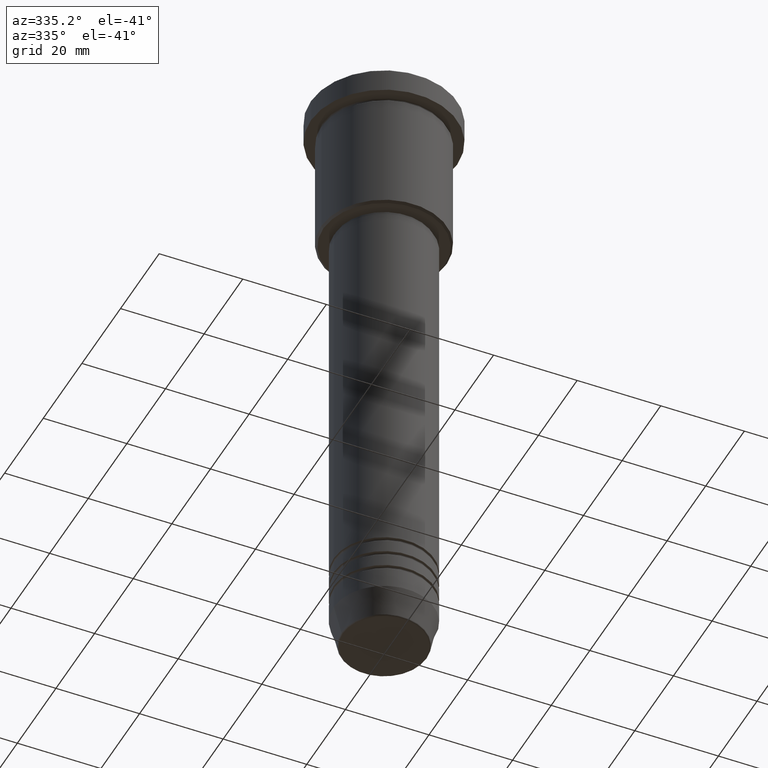
[diagram: clean part render]
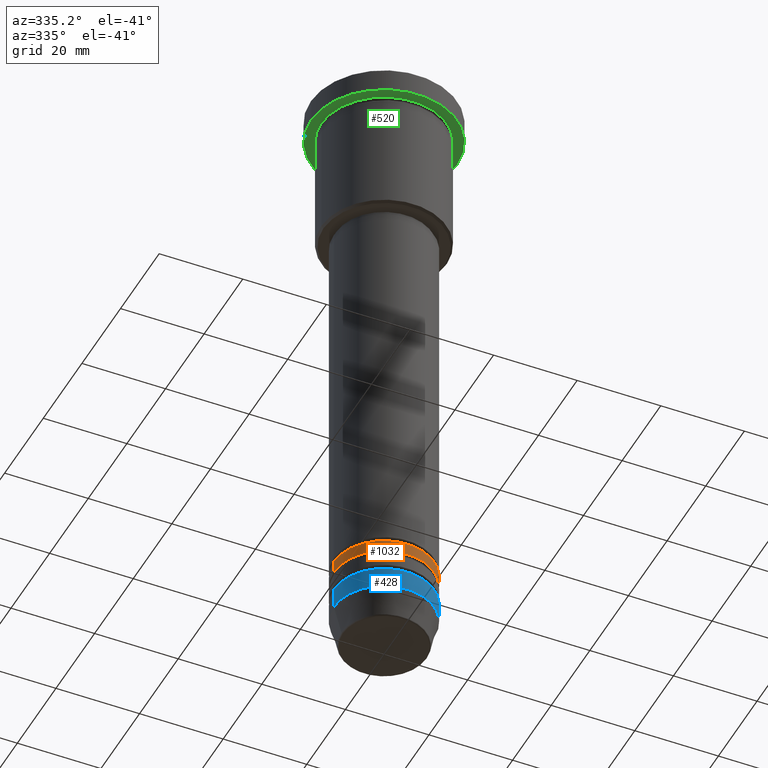
[diagram: same view with three faces highlighted in distinct colors, each labeled with its STEP entity id]
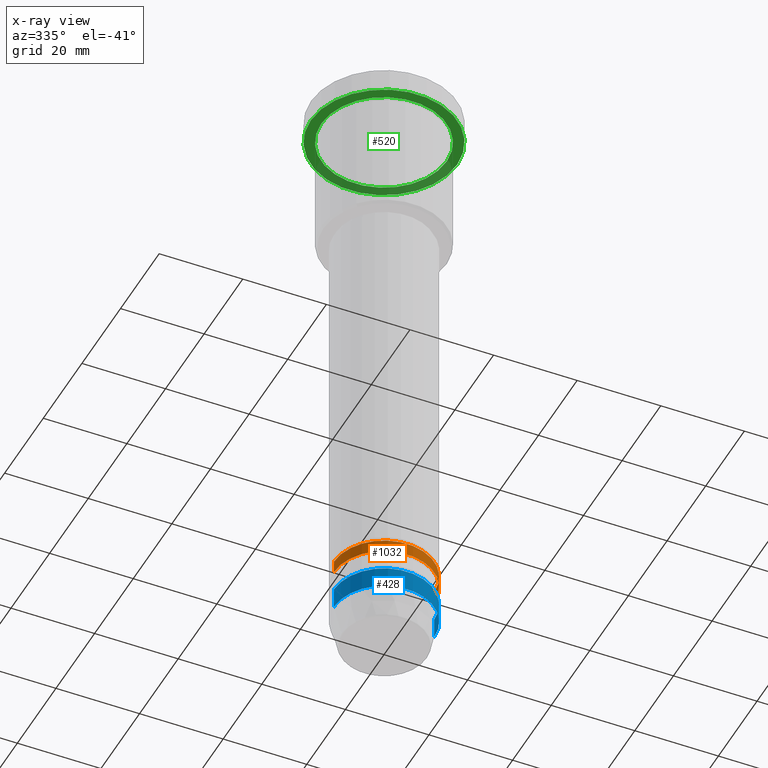
[diagram: x-ray of the same camera — body ghosted, the three highlighted faces saturated]
A machine part, auxiliary view with three faces highlighted in distinct colors.
The next image is the same camera in x-ray (body ghosted, the three faces saturated) — at least one of them is partly hidden behind the body in this view.
Their STEP definitions:

[orange] entity #1032 — the highlighted cylindrical surface (partial cylindrical patch) has radius 12 mm, axis along (-0, -0, 1).
#4 = AXIS2_PLACEMENT_3D ( 'NONE', #356, #722, #1078 ) ;
#32 = VERTEX_POINT ( 'NONE', #124 ) ;
#68 = VERTEX_POINT ( 'NONE', #255 ) ;
#85 = CIRCLE ( 'NONE', #4, 12.00000000000000000 ) ;
#124 = CARTESIAN_POINT ( 'NONE',  ( 12.00000000000000355, 0.000000000000000000, -133.9999999999999147 ) ) ;
#129 = EDGE_LOOP ( 'NONE', ( #529, #988, #687, #166 ) ) ;
#152 = CARTESIAN_POINT ( 'NONE',  ( 12.00000000000000000, 0.000000000000000000, -130.9999999999998863 ) ) ;
#166 = ORIENTED_EDGE ( 'NONE', *, *, #1021, .F. ) ;
#167 = LINE ( 'NONE', #874, #960 ) ;
#173 = DIRECTION ( 'NONE',  ( -0.000000000000000000, -0.000000000000000000, 1.000000000000000000 ) ) ;
#190 = CYLINDRICAL_SURFACE ( 'NONE', #445, 12.00000000000000178 ) ;
#241 = VECTOR ( 'NONE', #173, 1000.000000000000000 ) ;
#255 = CARTESIAN_POINT ( 'NONE',  ( -12.00000000000000000, 1.469576158976824144E-15, -130.9999999999998863 ) ) ;
#283 = CIRCLE ( 'NONE', #628, 12.00000000000000355 ) ;
#342 = LINE ( 'NONE', #1171, #241 ) ;
#343 = EDGE_CURVE ( 'NONE', #925, #32, #283, .T. ) ;
#356 = CARTESIAN_POINT ( 'NONE',  ( 0.000000000000000000, 0.000000000000000000, -130.9999999999998863 ) ) ;
#403 = VERTEX_POINT ( 'NONE', #152 ) ;
#445 = AXIS2_PLACEMENT_3D ( 'NONE', #820, #659, #751 ) ;
#452 = EDGE_CURVE ( 'NONE', #32, #403, #167, .T. ) ;
#457 = FACE_OUTER_BOUND ( 'NONE', #129, .T. ) ;
#474 = EDGE_CURVE ( 'NONE', #925, #68, #342, .T. ) ;
#529 = ORIENTED_EDGE ( 'NONE', *, *, #474, .F. ) ;
#593 = DIRECTION ( 'NONE',  ( -0.000000000000000000, -0.000000000000000000, 1.000000000000000000 ) ) ;
#628 = AXIS2_PLACEMENT_3D ( 'NONE', #943, #593, #1125 ) ;
#659 = DIRECTION ( 'NONE',  ( -0.000000000000000000, -0.000000000000000000, 1.000000000000000000 ) ) ;
#687 = ORIENTED_EDGE ( 'NONE', *, *, #452, .T. ) ;
#702 = CARTESIAN_POINT ( 'NONE',  ( -12.00000000000000533, 1.469576158976824539E-15, -133.9999999999999147 ) ) ;
#722 = DIRECTION ( 'NONE',  ( -0.000000000000000000, -0.000000000000000000, 1.000000000000000000 ) ) ;
#751 = DIRECTION ( 'NONE',  ( 1.000000000000000000, 0.000000000000000000, 0.000000000000000000 ) ) ;
#820 = CARTESIAN_POINT ( 'NONE',  ( 0.000000000000000000, 0.000000000000000000, 0.000000000000000000 ) ) ;
#874 = CARTESIAN_POINT ( 'NONE',  ( 12.00000000000000178, 0.000000000000000000, 0.000000000000000000 ) ) ;
#887 = DIRECTION ( 'NONE',  ( -0.000000000000000000, -0.000000000000000000, 1.000000000000000000 ) ) ;
#925 = VERTEX_POINT ( 'NONE', #702 ) ;
#943 = CARTESIAN_POINT ( 'NONE',  ( 0.000000000000000000, 0.000000000000000000, -133.9999999999999147 ) ) ;
#960 = VECTOR ( 'NONE', #887, 1000.000000000000000 ) ;
#988 = ORIENTED_EDGE ( 'NONE', *, *, #343, .T. ) ;
#1021 = EDGE_CURVE ( 'NONE', #68, #403, #85, .T. ) ;
#1032 = ADVANCED_FACE ( 'NONE', ( #457 ), #190, .T. ) ;
#1078 = DIRECTION ( 'NONE',  ( 1.000000000000000000, 0.000000000000000000, 0.000000000000000000 ) ) ;
#1125 = DIRECTION ( 'NONE',  ( 1.000000000000000000, 0.000000000000000000, 0.000000000000000000 ) ) ;
#1171 = CARTESIAN_POINT ( 'NONE',  ( -12.00000000000000178, 1.469576158976824144E-15, 0.000000000000000000 ) ) ;

[blue] entity #428 — the highlighted cylindrical surface (partial cylindrical patch) has radius 12 mm, axis along (-0, -0, 1).
#20 = VERTEX_POINT ( 'NONE', #109 ) ;
#30 = CARTESIAN_POINT ( 'NONE',  ( 12.00000000000000000, 0.000000000000000000, 0.000000000000000000 ) ) ;
#36 = LINE ( 'NONE', #30, #449 ) ;
#70 = CARTESIAN_POINT ( 'NONE',  ( -12.00000000000000000, 1.469576158976823947E-15, -139.0000000000000000 ) ) ;
#79 = VERTEX_POINT ( 'NONE', #895 ) ;
#109 = CARTESIAN_POINT ( 'NONE',  ( -12.00000000000000000, 1.469576158976823947E-15, -144.0000000000000284 ) ) ;
#119 = EDGE_CURVE ( 'NONE', #20, #316, #662, .T. ) ;
#140 = ORIENTED_EDGE ( 'NONE', *, *, #784, .T. ) ;
#163 = DIRECTION ( 'NONE',  ( -0.000000000000000000, -0.000000000000000000, 1.000000000000000000 ) ) ;
#180 = DIRECTION ( 'NONE',  ( -0.000000000000000000, -0.000000000000000000, 1.000000000000000000 ) ) ;
#235 = DIRECTION ( 'NONE',  ( -0.000000000000000000, -0.000000000000000000, 1.000000000000000000 ) ) ;
#284 = EDGE_CURVE ( 'NONE', #20, #954, #317, .T. ) ;
#316 = VERTEX_POINT ( 'NONE', #948 ) ;
#317 = LINE ( 'NONE', #400, #883 ) ;
#353 = CYLINDRICAL_SURFACE ( 'NONE', #1075, 12.00000000000000000 ) ;
#400 = CARTESIAN_POINT ( 'NONE',  ( -12.00000000000000000, 1.469576158976823947E-15, 0.000000000000000000 ) ) ;
#428 = ADVANCED_FACE ( 'NONE', ( #530 ), #353, .T. ) ;
#449 = VECTOR ( 'NONE', #934, 1000.000000000000000 ) ;
#514 = ORIENTED_EDGE ( 'NONE', *, *, #1147, .F. ) ;
#523 = DIRECTION ( 'NONE',  ( 1.000000000000000000, 0.000000000000000000, 0.000000000000000000 ) ) ;
#530 = FACE_OUTER_BOUND ( 'NONE', #733, .T. ) ;
#662 = CIRCLE ( 'NONE', #739, 12.00000000000000000 ) ;
#668 = ORIENTED_EDGE ( 'NONE', *, *, #119, .T. ) ;
#733 = EDGE_LOOP ( 'NONE', ( #967, #668, #140, #514 ) ) ;
#739 = AXIS2_PLACEMENT_3D ( 'NONE', #932, #837, #1121 ) ;
#784 = EDGE_CURVE ( 'NONE', #316, #79, #36, .T. ) ;
#834 = DIRECTION ( 'NONE',  ( 1.000000000000000000, 0.000000000000000000, 0.000000000000000000 ) ) ;
#837 = DIRECTION ( 'NONE',  ( -0.000000000000000000, -0.000000000000000000, 1.000000000000000000 ) ) ;
#883 = VECTOR ( 'NONE', #235, 1000.000000000000000 ) ;
#895 = CARTESIAN_POINT ( 'NONE',  ( 12.00000000000000000, 0.000000000000000000, -139.0000000000000000 ) ) ;
#901 = CIRCLE ( 'NONE', #1053, 12.00000000000000000 ) ;
#932 = CARTESIAN_POINT ( 'NONE',  ( 0.000000000000000000, 0.000000000000000000, -144.0000000000000284 ) ) ;
#934 = DIRECTION ( 'NONE',  ( -0.000000000000000000, -0.000000000000000000, 1.000000000000000000 ) ) ;
#948 = CARTESIAN_POINT ( 'NONE',  ( 12.00000000000000000, 0.000000000000000000, -144.0000000000000284 ) ) ;
#954 = VERTEX_POINT ( 'NONE', #70 ) ;
#967 = ORIENTED_EDGE ( 'NONE', *, *, #284, .F. ) ;
#994 = CARTESIAN_POINT ( 'NONE',  ( 0.000000000000000000, 0.000000000000000000, -139.0000000000000000 ) ) ;
#1053 = AXIS2_PLACEMENT_3D ( 'NONE', #994, #180, #834 ) ;
#1071 = CARTESIAN_POINT ( 'NONE',  ( 0.000000000000000000, 0.000000000000000000, 0.000000000000000000 ) ) ;
#1075 = AXIS2_PLACEMENT_3D ( 'NONE', #1071, #163, #523 ) ;
#1121 = DIRECTION ( 'NONE',  ( 1.000000000000000000, 0.000000000000000000, 0.000000000000000000 ) ) ;
#1147 = EDGE_CURVE ( 'NONE', #954, #79, #901, .T. ) ;

[green] entity #520 — the highlighted planar face has unit normal (0, 0, -1).
#21 = AXIS2_PLACEMENT_3D ( 'NONE', #171, #614, #420 ) ;
#58 = DIRECTION ( 'NONE',  ( 0.000000000000000000, 0.000000000000000000, -1.000000000000000000 ) ) ;
#63 = ORIENTED_EDGE ( 'NONE', *, *, #90, .F. ) ;
#78 = PLANE ( 'NONE',  #569 ) ;
#90 = EDGE_CURVE ( 'NONE', #689, #714, #719, .T. ) ;
#170 = AXIS2_PLACEMENT_3D ( 'NONE', #923, #951, #329 ) ;
#171 = CARTESIAN_POINT ( 'NONE',  ( 0.000000000000000000, 0.000000000000000000, -5.999999999999995559 ) ) ;
#177 = CARTESIAN_POINT ( 'NONE',  ( 0.000000000000000000, 17.50000000000000000, -5.999999999999995559 ) ) ;
#329 = DIRECTION ( 'NONE',  ( -1.000000000000000000, 0.000000000000000000, 0.000000000000000000 ) ) ;
#354 = DIRECTION ( 'NONE',  ( -0.000000000000000000, -0.000000000000000000, 1.000000000000000000 ) ) ;
#375 = CIRCLE ( 'NONE', #21, 15.00000000000000000 ) ;
#391 = CARTESIAN_POINT ( 'NONE',  ( 17.50000000000000000, 0.000000000000000000, -5.999999999999995559 ) ) ;
#420 = DIRECTION ( 'NONE',  ( -1.000000000000000000, 0.000000000000000000, 0.000000000000000000 ) ) ;
#458 = EDGE_CURVE ( 'NONE', #714, #689, #1056, .T. ) ;
#520 = ADVANCED_FACE ( 'NONE', ( #535, #892 ), #78, .T. ) ;
#535 = FACE_BOUND ( 'NONE', #853, .T. ) ;
#544 = AXIS2_PLACEMENT_3D ( 'NONE', #1167, #354, #1172 ) ;
#561 = CARTESIAN_POINT ( 'NONE',  ( -17.50000000000000000, 2.143131898507868248E-15, -5.999999999999995559 ) ) ;
#569 = AXIS2_PLACEMENT_3D ( 'NONE', #177, #58, #635 ) ;
#582 = CIRCLE ( 'NONE', #170, 15.00000000000000000 ) ;
#614 = DIRECTION ( 'NONE',  ( -0.000000000000000000, -0.000000000000000000, 1.000000000000000000 ) ) ;
#635 = DIRECTION ( 'NONE',  ( -1.000000000000000000, 0.000000000000000000, -0.000000000000000000 ) ) ;
#682 = ORIENTED_EDGE ( 'NONE', *, *, #458, .F. ) ;
#689 = VERTEX_POINT ( 'NONE', #391 ) ;
#708 = CARTESIAN_POINT ( 'NONE',  ( 0.000000000000000000, 0.000000000000000000, -5.999999999999995559 ) ) ;
#714 = VERTEX_POINT ( 'NONE', #561 ) ;
#719 = CIRCLE ( 'NONE', #544, 17.50000000000000000 ) ;
#721 = EDGE_CURVE ( 'NONE', #855, #913, #582, .T. ) ;
#809 = DIRECTION ( 'NONE',  ( 1.000000000000000000, 0.000000000000000000, 0.000000000000000000 ) ) ;
#853 = EDGE_LOOP ( 'NONE', ( #949, #1045 ) ) ;
#855 = VERTEX_POINT ( 'NONE', #1123 ) ;
#872 = CARTESIAN_POINT ( 'NONE',  ( 15.00000000000000000, 1.836970198721029589E-15, -5.999999999999994671 ) ) ;
#881 = EDGE_LOOP ( 'NONE', ( #63, #682 ) ) ;
#892 = FACE_OUTER_BOUND ( 'NONE', #881, .T. ) ;
#913 = VERTEX_POINT ( 'NONE', #872 ) ;
#923 = CARTESIAN_POINT ( 'NONE',  ( 0.000000000000000000, 0.000000000000000000, -5.999999999999995559 ) ) ;
#949 = ORIENTED_EDGE ( 'NONE', *, *, #721, .T. ) ;
#951 = DIRECTION ( 'NONE',  ( -0.000000000000000000, -0.000000000000000000, 1.000000000000000000 ) ) ;
#974 = EDGE_CURVE ( 'NONE', #913, #855, #375, .T. ) ;
#991 = DIRECTION ( 'NONE',  ( -0.000000000000000000, -0.000000000000000000, 1.000000000000000000 ) ) ;
#1045 = ORIENTED_EDGE ( 'NONE', *, *, #974, .T. ) ;
#1056 = CIRCLE ( 'NONE', #1096, 17.50000000000000000 ) ;
#1096 = AXIS2_PLACEMENT_3D ( 'NONE', #708, #991, #809 ) ;
#1123 = CARTESIAN_POINT ( 'NONE',  ( -15.00000000000000000, 0.000000000000000000, -5.999999999999994671 ) ) ;
#1167 = CARTESIAN_POINT ( 'NONE',  ( 0.000000000000000000, 0.000000000000000000, -5.999999999999995559 ) ) ;
#1172 = DIRECTION ( 'NONE',  ( 1.000000000000000000, 0.000000000000000000, 0.000000000000000000 ) ) ;